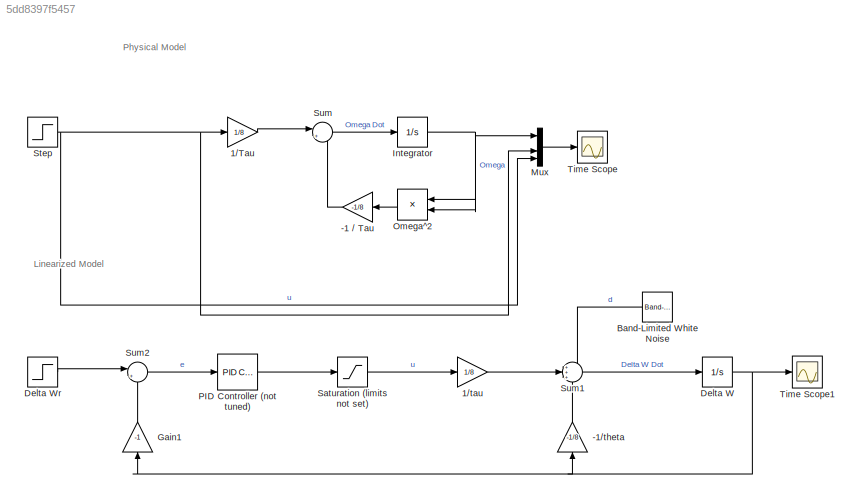
MODEL slx_5dd8397f5457
KIND model
CONFIG AbsTol = auto
CONFIG EnableMultiTasking = off
CONFIG FixedStep = auto
CONFIG MaxStep = auto
CONFIG MinStep = auto
CONFIG RelTol = 1e-3
CONFIG SampleTimeConstraint = Unconstrained
CONFIG Solver = VariableStepAuto
CONFIG SolverName = VariableStepAuto
CONFIG StartTime = 0.0
CONFIG StopTime = 10.0
BLOCK [Gain] -1 // Tau
  Gain = -1/8
BLOCK [Gain] -1//theta
  Gain = -1/8
  NameLocation = left
BLOCK [Gain] 1//Tau
  Gain = 1/8
BLOCK [Gain] 1//tau
  Gain = 1/8
BLOCK [Reference] Band-Limited White Noise  REF=simulink/Sources/Band-Limited
White Noise
  NameLocation = top
  Ports = [0, 1]
  SourceBlock = simulink/Sources/Band-Limited\nWhite Noise
  SourceProductBaseCode = SL
  SourceType = Band-Limited White Noise.
BLOCK [Integrator] Delta W
  Ports = [1, 1]
BLOCK [Step] Delta Wr
  SampleTime = 0
BLOCK [Gain] Gain1
  Gain = -1
  NameLocation = left
BLOCK [Integrator] Integrator
  Ports = [1, 1]
BLOCK [Mux] Mux
  DisplayOption = bar
  Ports = [4, 1]
BLOCK [Product] Omega^2
  NameLocation = top
  Ports = [2, 1]
BLOCK [Reference] PID Controller (not tuned)  REF=simulink/Continuous/PID Controller
  Ports = [1, 1]
  SourceBlock = simulink/Continuous/PID Controller
  SourceProductBaseCode = SL
  SourceType = PID 1dof
BLOCK [Saturate] Saturation (limits not set)
BLOCK [Step] Step
  SampleTime = 0
BLOCK [Sum] Sum
  Inputs = |++
  Ports = [2, 1]
BLOCK [Sum] Sum1
  Inputs = +++
  Ports = [3, 1]
BLOCK [Sum] Sum2
  Inputs = |++
  Ports = [2, 1]
BLOCK [Scope] Time Scope
  DefaultConfigurationName = spbscopes.TimeScopeBlockCfg
  Floating = off
  NumInputPorts = 1
  Ports = [1]
  ScopeSpecificationString = spbscopes.TimeScopeBlockCfg('CurrentConfiguration', extmgr.ConfigurationSet(extmgr.Configuration('Core','General UI',true),extmgr.Configuration('Core','Source UI',true),extmgr.Configuration('Sources','WiredSimulink',true,'DataLoggingVariableName','ScopeData1'),extmgr.Configuration('Visuals','Time Domain',true,'DisplayPropertyDefaults',struct('MinYLimReal','-0.125','MaxYLimReal','1.125','YLabelReal...<+1353ch>
  UserDataPersistent = on
BLOCK [Scope] Time Scope1
  DefaultConfigurationName = spbscopes.TimeScopeBlockCfg
  Floating = off
  NumInputPorts = 1
  Ports = [1]
  ScopeSpecificationString = spbscopes.TimeScopeBlockCfg('CurrentConfiguration', extmgr.ConfigurationSet(extmgr.Configuration('Core','General UI',true),extmgr.Configuration('Core','Source UI',true),extmgr.Configuration('Sources','WiredSimulink',true),extmgr.Configuration('Visuals','Time Domain',true,'DisplayPropertyDefaults',struct('MinYLimReal','-0.30861','MaxYLimReal','1.22575','YLabelReal','Amplitude','MinYLimMag','0.00000...<+1381ch>
  UserDataPersistent = on
ANNOTATION (root): Linearized Model
ANNOTATION (root): Physical Model
LINE -1 // Tau:1 -> Sum:2
LINE -1//theta:1 -> Sum1:3
LINE 1//Tau:1 -> Sum:1
LINE 1//tau:1 -> Sum1:2
LINE Band-Limited White Noise:1 -> Sum1:1
NET Delta W:1 -> -1//theta:1, Gain1:1, Time Scope1:1
LINE Delta Wr:1 -> Sum2:1
LINE Gain1:1 -> Sum2:2
NET Integrator:1 -> Mux:1, Omega^2:1, Omega^2:2
LINE Mux:1 -> Time Scope:1
LINE Omega^2:1 -> -1 // Tau:1
LINE PID Controller (not tuned):1 -> Saturation (limits not set):1
LINE Saturation (limits not set):1 -> 1//tau:1
NET Step:1 -> 1//Tau:1, Mux:3, Mux:4
LINE Sum1:1 -> Delta W:1
LINE Sum2:1 -> PID Controller (not tuned):1
LINE Sum:1 -> Integrator:1
note: NET lines group one-source signal fan-out (src -> all destinations, sorted); 1:1 wires keep LINE
